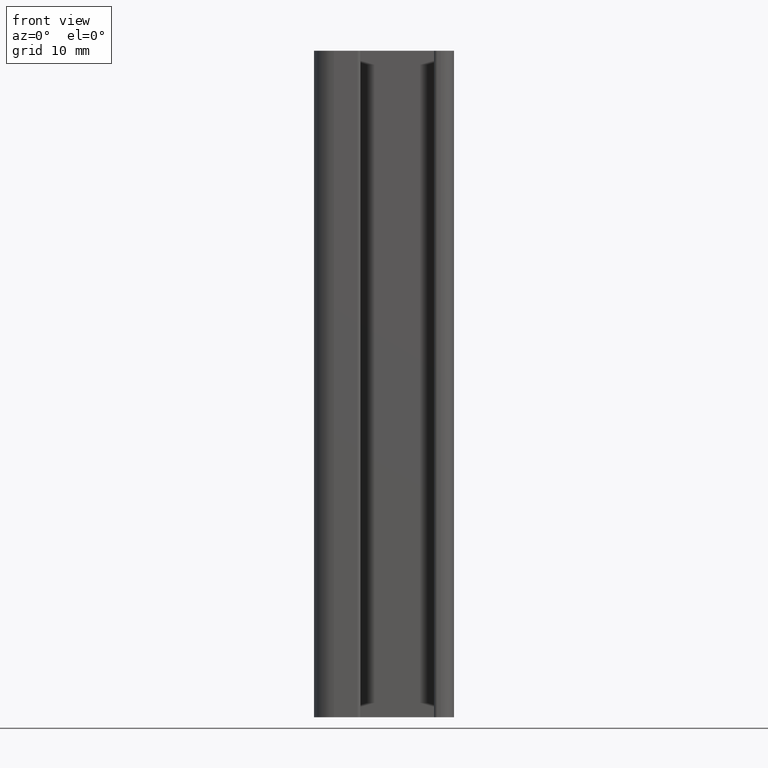
[diagram: clean part render]
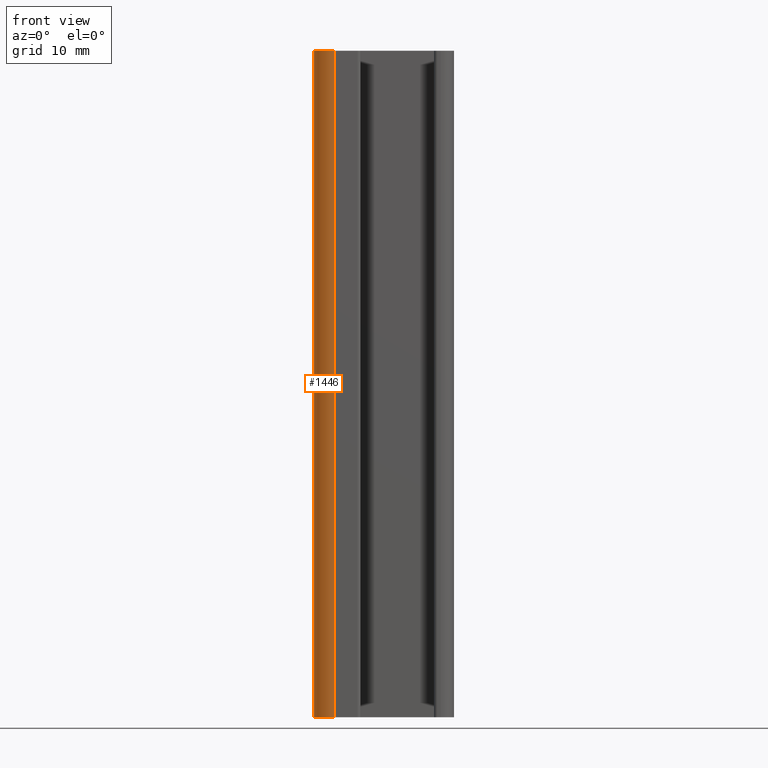
[diagram: same view with one face highlighted and labeled with its STEP entity id]
A machine part, front view. The second image highlights one B-rep face of the part: STEP entity #1446.
In plain terms, the highlighted cylindrical surface (edge-blend (fillet) strip) has radius 3 mm, axis along (0, 0, 1).
Its self-contained STEP definition (entity closure, byte-faithful):
#134=FACE_OUTER_BOUND('',#207,.T.);
#207=EDGE_LOOP('',(#1275,#1276,#1277,#1278));
#369=LINE('',#2389,#531);
#371=LINE('',#2393,#533);
#531=VECTOR('',#1963,100.);
#533=VECTOR('',#1967,100.);
#576=CIRCLE('',#1555,3.);
#582=CIRCLE('',#1568,3.);
#712=VERTEX_POINT('',#2357);
#713=VERTEX_POINT('',#2359);
#721=VERTEX_POINT('',#2388);
#722=VERTEX_POINT('',#2392);
#913=EDGE_CURVE('',#713,#712,#576,.T.);
#928=EDGE_CURVE('',#721,#713,#369,.T.);
#930=EDGE_CURVE('',#722,#712,#371,.T.);
#931=EDGE_CURVE('',#721,#722,#582,.T.);
#1275=ORIENTED_EDGE('',*,*,#913,.T.);
#1276=ORIENTED_EDGE('',*,*,#930,.F.);
#1277=ORIENTED_EDGE('',*,*,#931,.F.);
#1278=ORIENTED_EDGE('',*,*,#928,.T.);
#1376=CYLINDRICAL_SURFACE('',#1567,3.);
#1446=ADVANCED_FACE('',(#134),#1376,.T.);
#1555=AXIS2_PLACEMENT_3D('',#2360,#1930,#1931);
#1567=AXIS2_PLACEMENT_3D('',#2391,#1965,#1966);
#1568=AXIS2_PLACEMENT_3D('',#2394,#1968,#1969);
#1930=DIRECTION('center_axis',(0.,0.,-1.));
#1931=DIRECTION('ref_axis',(1.,-7.4014868308344E-15,0.));
#1963=DIRECTION('',(0.,0.,1.));
#1965=DIRECTION('center_axis',(0.,0.,1.));
#1966=DIRECTION('ref_axis',(1.,-7.4014868308344E-15,0.));
#1967=DIRECTION('',(0.,0.,1.));
#1968=DIRECTION('center_axis',(0.,0.,-1.));
#1969=DIRECTION('ref_axis',(1.,-7.4014868308344E-15,0.));
#2357=CARTESIAN_POINT('',(-14.9999999999998,-16.9999999999996,100.));
#2359=CARTESIAN_POINT('',(-11.9999999999998,-19.9999999999997,100.));
#2360=CARTESIAN_POINT('Origin',(-11.9999999999998,-16.9999999999997,100.));
#2388=CARTESIAN_POINT('',(-11.9999999999998,-19.9999999999997,0.));
#2389=CARTESIAN_POINT('',(-11.9999999999998,-19.9999999999997,0.));
#2391=CARTESIAN_POINT('Origin',(-11.9999999999998,-16.9999999999997,0.));
#2392=CARTESIAN_POINT('',(-14.9999999999998,-16.9999999999996,0.));
#2393=CARTESIAN_POINT('',(-14.9999999999998,-16.9999999999996,0.));
#2394=CARTESIAN_POINT('Origin',(-11.9999999999998,-16.9999999999997,0.));